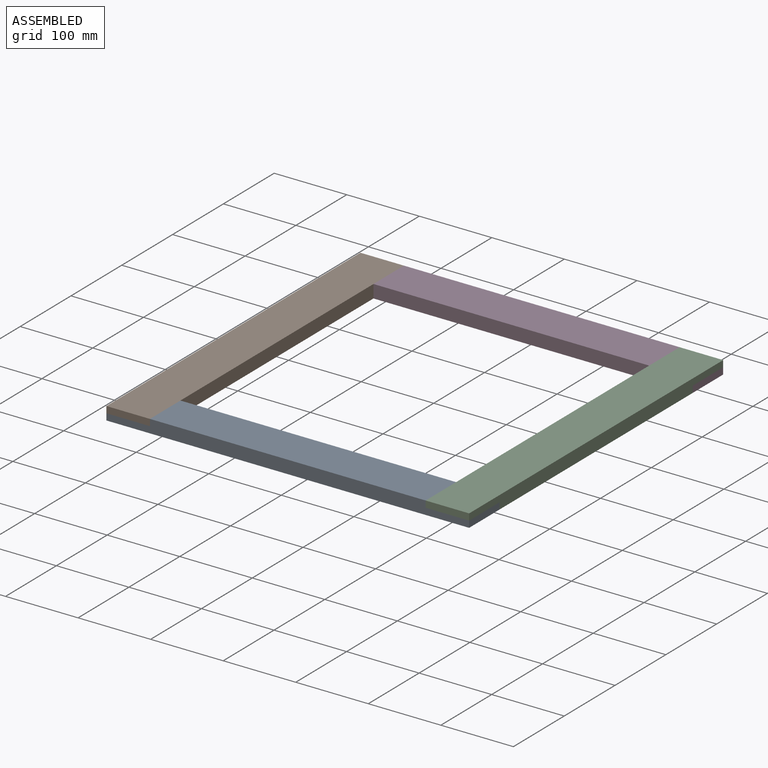
[diagram: assembled view]
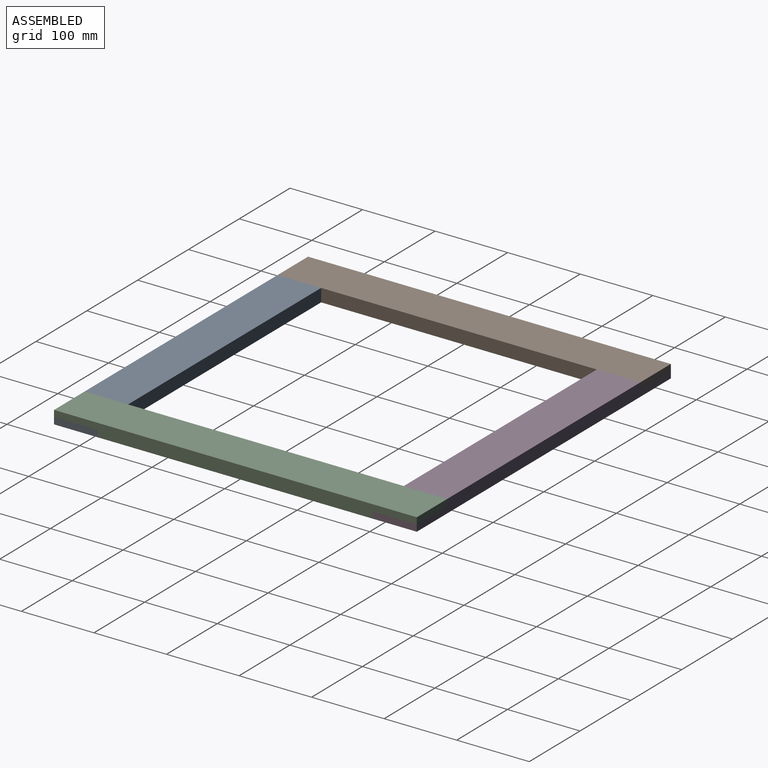
[diagram: assembled view, second angle]
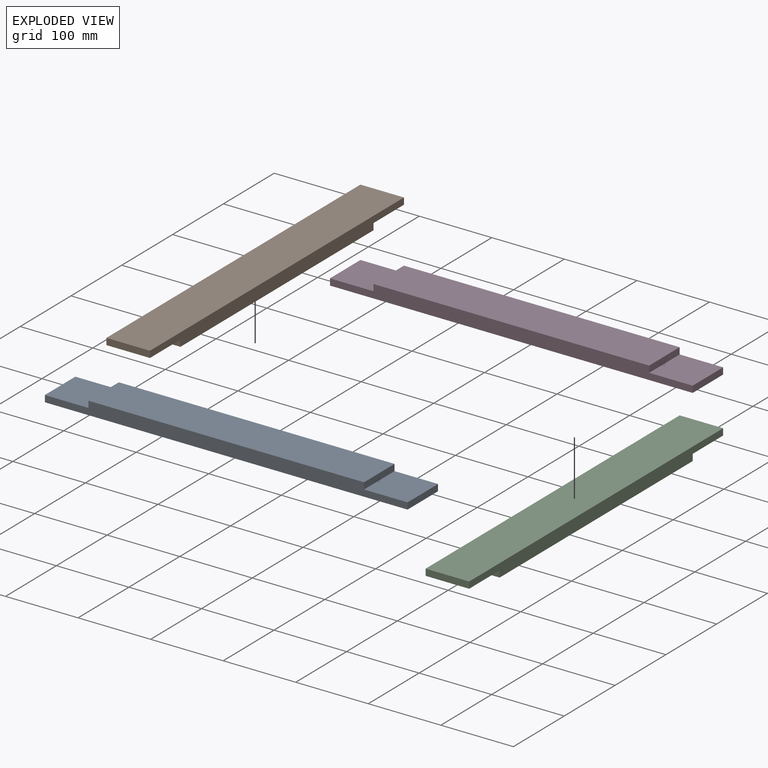
[diagram: exploded view]
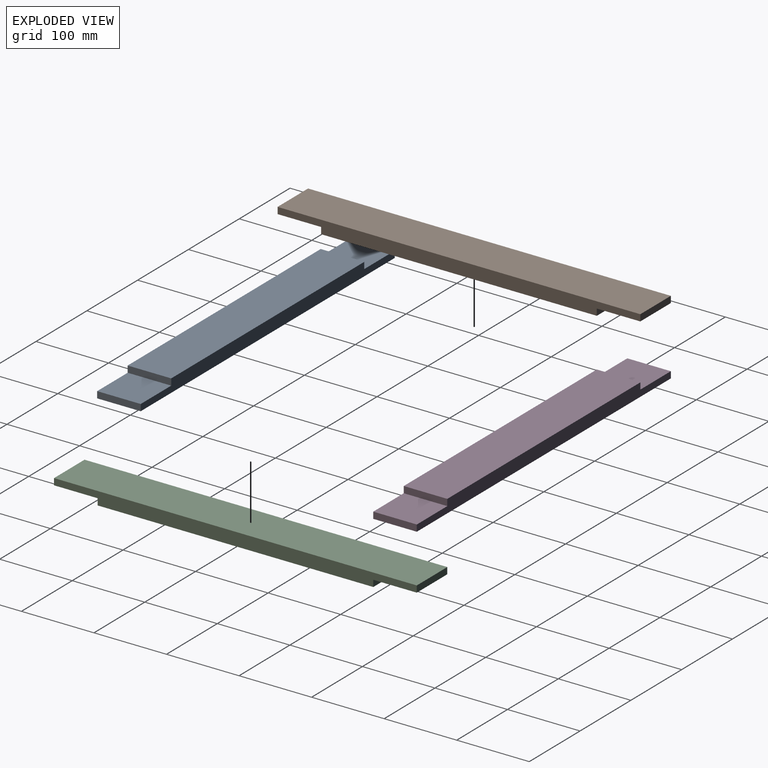
[diagram: exploded view, second angle]
ASSEMBLY  parts=4 mates=3
PART A: 10 faces, bbox 500x60x18 mm
  f0: plane 500x18mm, normal (0,-1,0), area 7920mm2, adj f1,f3,f4,f5,f6,f7,f8,f9
  f1: plane 60x9mm, normal (1,0,0), area 540mm2, adj f0,f2,f4,f9
  f2: plane 500x18mm, normal (0,1,0), area 7920mm2, adj f1,f3,f4,f5,f6,f7,f8,f9
  f3: plane 60x9mm, normal (-1,0,0), area 540mm2, adj f0,f2,f4,f7
  f4: plane 380x60mm, normal (0,0,1), area 22800mm2, adj f0,f1,f2,f3
  f5: plane 500x60mm, normal (0,0,-1), area 30000mm2, adj f0,f2,f6,f8
  f6: plane 60x9mm, normal (-1,0,0), area 540mm2, adj f0,f2,f5,f7
  f7: plane 60x60mm, normal (0,0,1), area 3600mm2, adj f0,f2,f3,f6
  f8: plane 60x9mm, normal (1,0,0), area 540mm2, adj f0,f2,f5,f9
  f9: plane 60x60mm, normal (0,0,1), area 3600mm2, adj f0,f1,f2,f8
PART B: same geometry as A
PART C: same geometry as A
PART D: same geometry as A
PLACE A at identity
PLACE B rot(axis=(0.71,0.71,0),180deg) t=(-220,220,18)mm
PLACE C rot(axis=(0.71,0.71,0),180deg) t=(220,220,18)mm
PLACE D t=(0,440,0)mm
MATE fastened C.f7 <-> A.f9  axis (0,0,-1) through (220,0,9)mm
MATE fastened D.f9 <-> C.f9  axis (0,0,1) through (220,440,9)mm
MATE fastened B.f9 <-> D.f7  axis (0,0,-1) through (-220,440,9)mm
